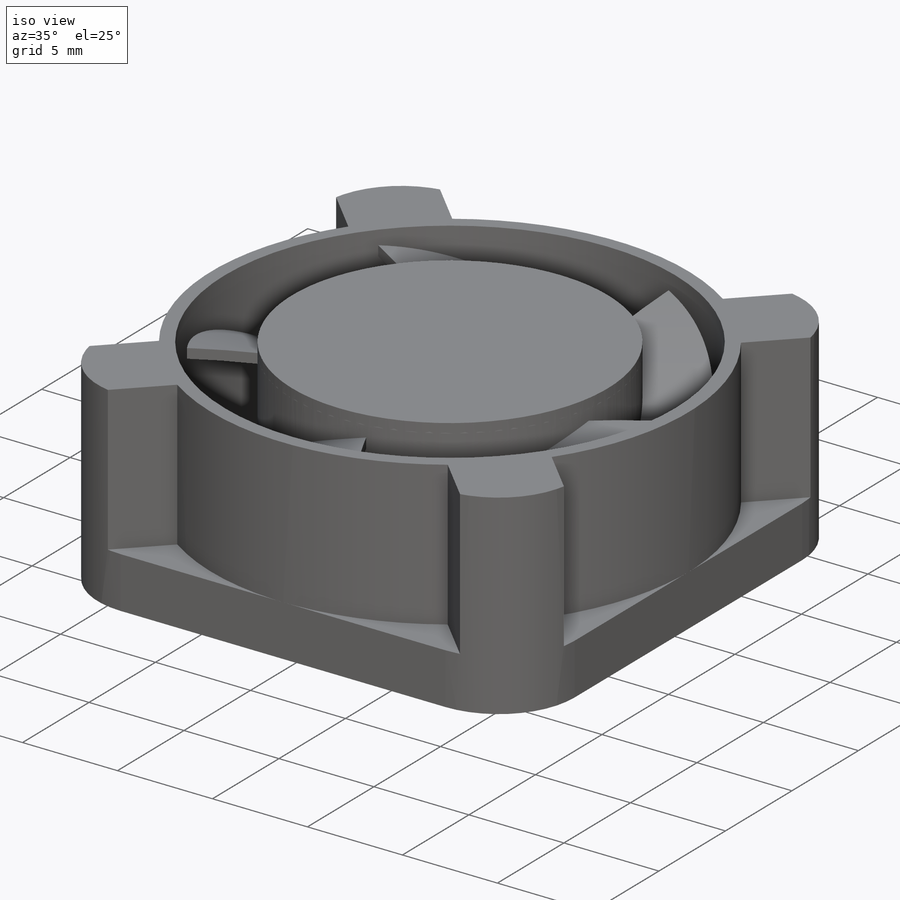
[diagram: iso view]
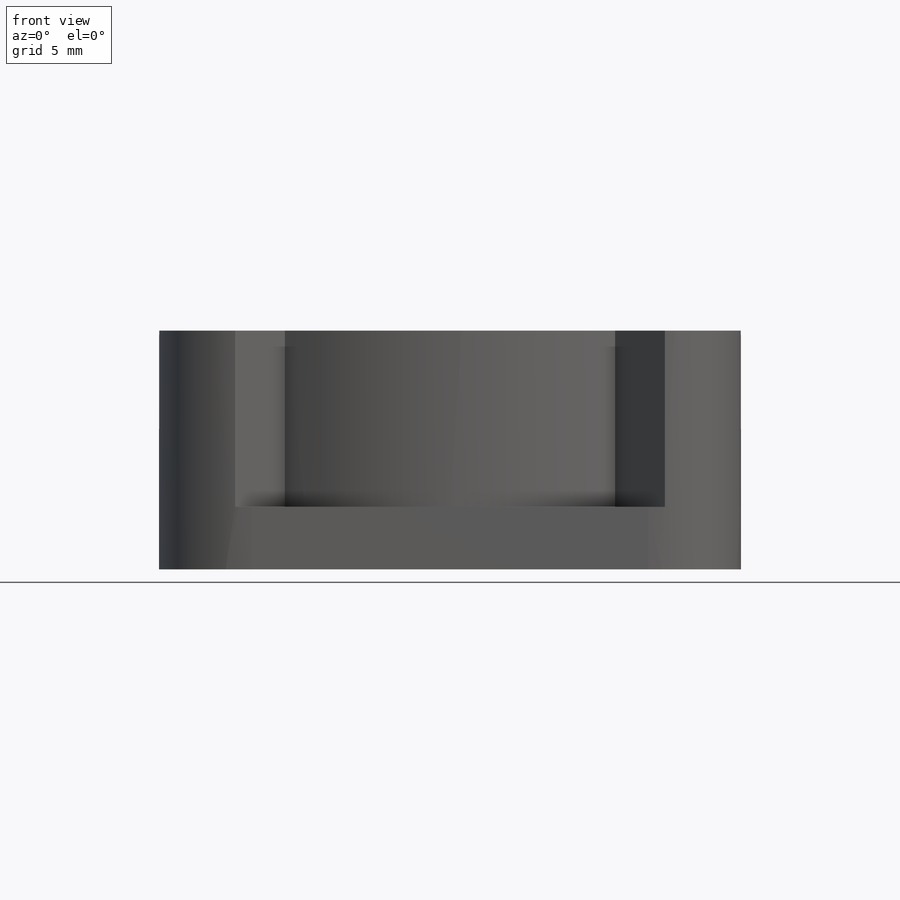
[diagram: front view]
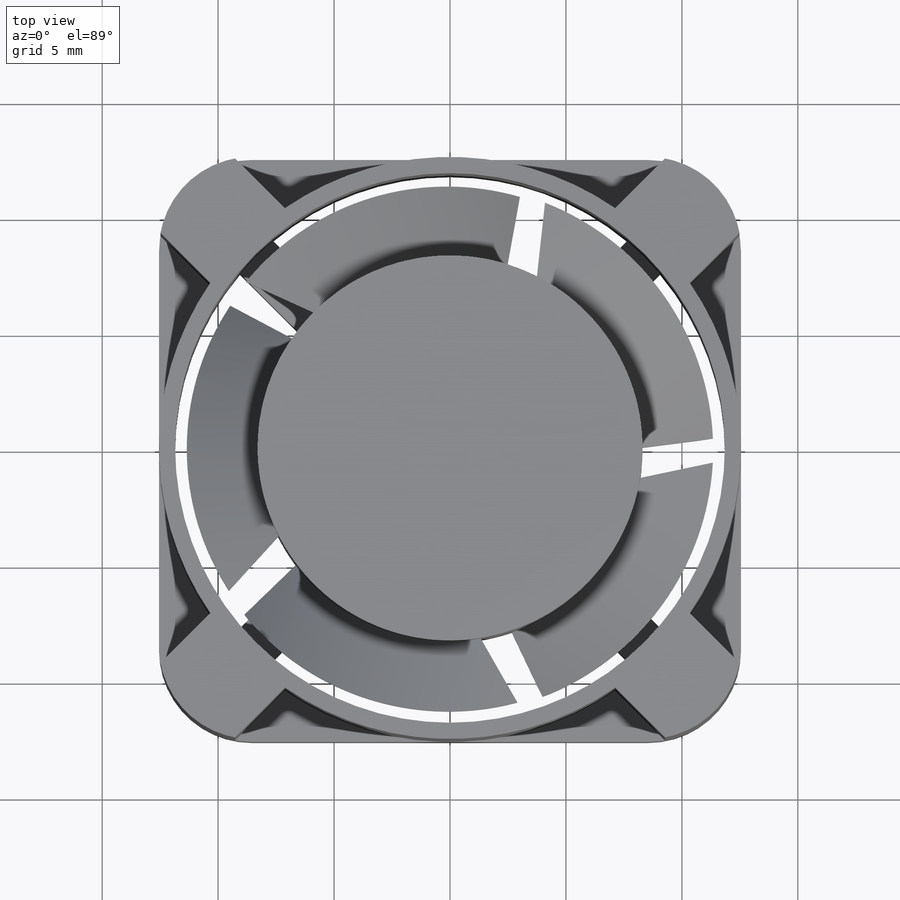
[diagram: top view]
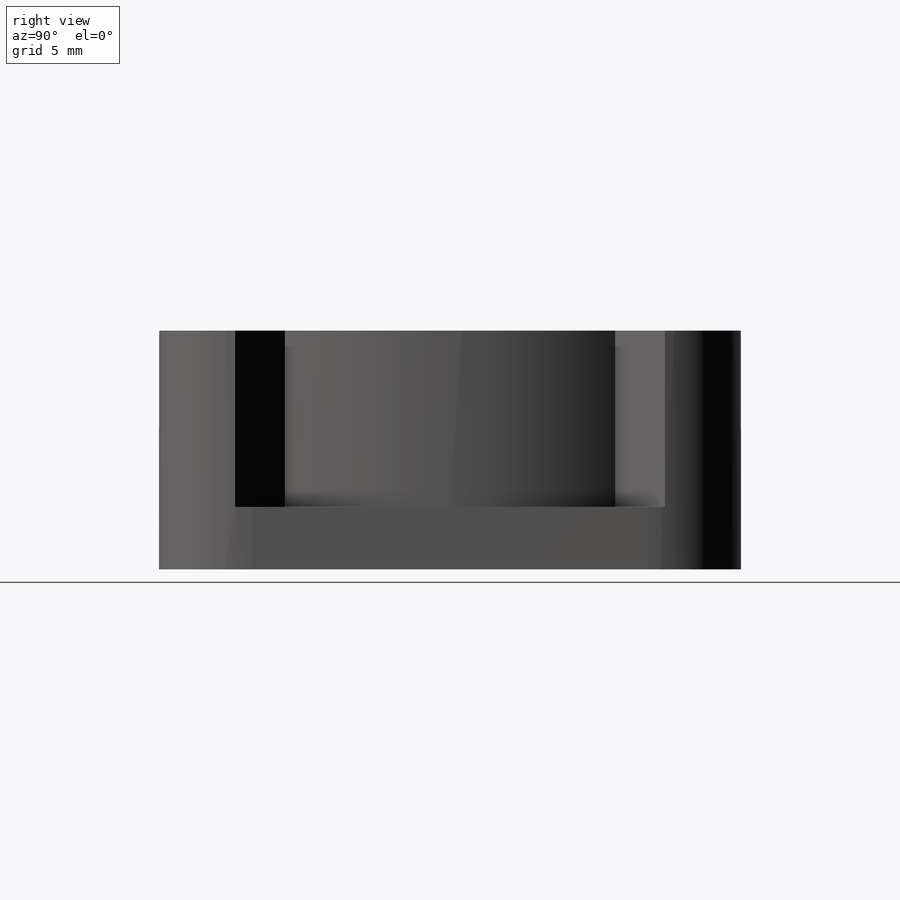
[diagram: right view]
SOLIDWORKS PART (.sldprt)
format: sldprt  version: not decoded by parser v0  size: 608,768 bytes
history: native  units: mm
features: sketch x7, extrude x5, plane x4, fillet x2, cut_extrude x2, material x1, pattern_circular x1 (+9 scaffold rows collapsed)
feature tree (31):
  scaffold x9  (default folders/planes/origin — collapsed)
  material  "Material <nicht festgelegt>"
  plane  "Ebene vorne"
  plane  "Ebene oben"
  plane  "Ebene rechts"
  sketch  "Skizze9"  dims[c1.D3=~23.87962mm c1.D5=16.0mm c1.D6=28.0mm c1.D1=25.1mm c1.D2=4.55mm c2.D3=0.7mm c2.D4=2.0mm c2.D6=20.0mm]
  extrude  "Aufsatz-Linear austragen5"  Depth=2.7mm
  extrude  "Aufsatz-Linear austragen6"  [1 undecoded]
  sketch  "Skizze9<4>"  dims[D1=10.3mm]
  fillet  "Verrundung7"  Radius=4mm
  sketch  "Skizze10"  dims[D1=16.6mm]
  extrude  "Aufsatz-Linear austragen7"  Depth=0.5mm
  plane  "Ebene3"  Offset=20mm
  sketch  "Skizze12"  dims[c1.D1=~6.441411mm c1.D3=25.0mm c2.D1=0.5mm c2.D2=12.5mm c2.D4=0.5mm]
  extrude  "Aufsatz-Linear austragen8"  [1 undecoded]
  sketch  "Skizze13"  dims[D1=0.5mm]
  cut_extrude  "Schnitt-Linear austragen4"  [1 undecoded]
  sketch  "Skizze15"  dims[c1.D1=~2.300717mm c2.D1=76.0deg c2.D2=~3.008076mm c3.D2=28.0deg]
  cut_extrude  "Schnitt-Linear austragen7"  [1 undecoded]
  pattern_circular  "Kreismuster2"  Count=5 Angle=72deg
  fillet  "Verrundung8"  Radius=0.5mm
  sketch  "Skizze14"
  extrude  "Aufsatz-Linear austragen9"  Depth=20.9mm
decode coverage: 12 of 17 modeling features carry decoded parameters
note: ~ marks probable driven/reference dimensions
note: 4 parameter values undecoded
summary: no parameter record found for 4 features
note: suppression state not decoded; provenance and decode notes live in map.json
